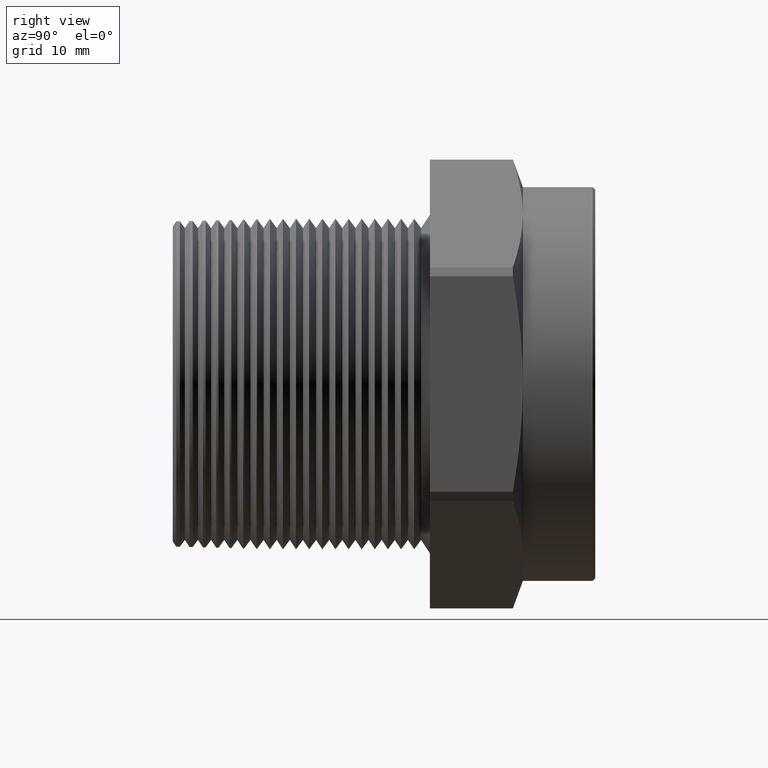
[diagram: clean part render]
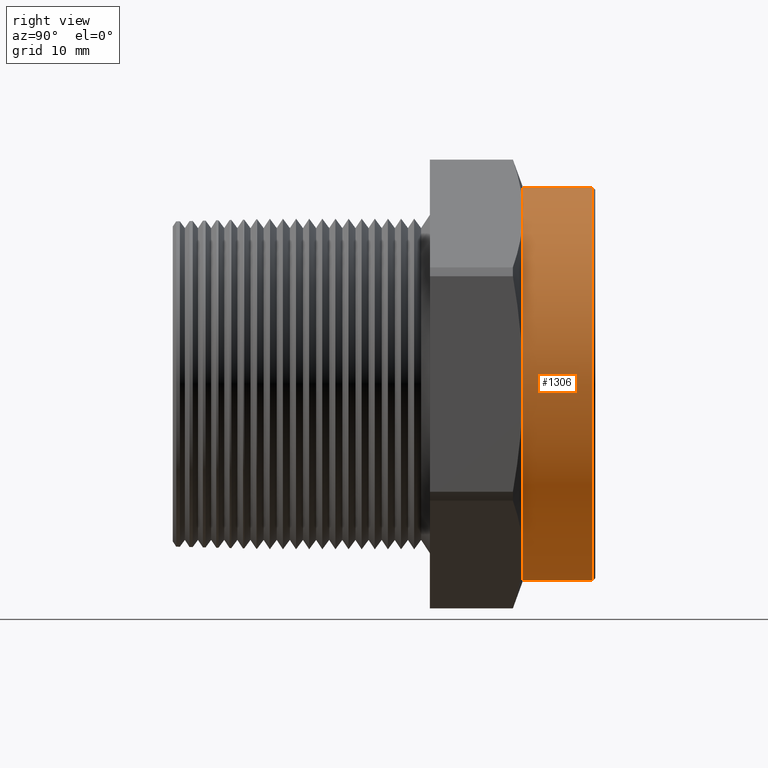
[diagram: same view with one face highlighted and labeled with its STEP entity id]
A machine part, right view. The second image highlights one B-rep face of the part: STEP entity #1306.
In plain terms, the highlighted cylindrical surface (partial cylindrical patch) has radius 19.05 mm, axis along (-0, -1, -0).
Its self-contained STEP definition (entity closure, byte-faithful):
#7 = EDGE_CURVE ( 'NONE', #9, #10, #1420, .T. ) ;
#9 = VERTEX_POINT ( 'NONE', #1480 ) ;
#10 = VERTEX_POINT ( 'NONE', #1479 ) ;
#477 = DIRECTION ( 'NONE',  ( -0.0000000000000000000, -1.000000000000000000, -0.0000000000000000000 ) ) ;
#1246 = VERTEX_POINT ( 'NONE', #3675 ) ;
#1248 = EDGE_CURVE ( 'NONE', #1249, #1246, #3674, .T. ) ;
#1249 = VERTEX_POINT ( 'NONE', #3669 ) ;
#1306 = ADVANCED_FACE ( 'NONE', ( #3805 ), #3804, .T. ) ;
#1307 = EDGE_LOOP ( 'NONE', ( #1308, #1309, #1311, #1368, #1371, #1374, #1377 ) ) ;
#1308 = ORIENTED_EDGE ( 'NONE', *, *, #1248, .T. ) ;
#1309 = ORIENTED_EDGE ( 'NONE', *, *, #1310, .T. ) ;
#1310 = EDGE_CURVE ( 'NONE', #1246, #10, #3799, .T. ) ;
#1311 = ORIENTED_EDGE ( 'NONE', *, *, #7, .F. ) ;
#1368 = ORIENTED_EDGE ( 'NONE', *, *, #1369, .F. ) ;
#1369 = EDGE_CURVE ( 'NONE', #1370, #9, #3878, .T. ) ;
#1370 = VERTEX_POINT ( 'NONE', #3873 ) ;
#1371 = ORIENTED_EDGE ( 'NONE', *, *, #1372, .F. ) ;
#1372 = EDGE_CURVE ( 'NONE', #1373, #1370, #3872, .T. ) ;
#1373 = VERTEX_POINT ( 'NONE', #3934 ) ;
#1374 = ORIENTED_EDGE ( 'NONE', *, *, #1375, .F. ) ;
#1375 = EDGE_CURVE ( 'NONE', #1376, #1373, #3929, .T. ) ;
#1376 = VERTEX_POINT ( 'NONE', #3924 ) ;
#1377 = ORIENTED_EDGE ( 'NONE', *, *, #1378, .F. ) ;
#1378 = EDGE_CURVE ( 'NONE', #1249, #1376, #3923, .T. ) ;
#1418 = CARTESIAN_POINT ( 'NONE',  ( 0.0000000000000000000, 1.334199999999999800, 0.0000000000000000000 ) ) ;
#1419 = AXIS2_PLACEMENT_3D ( 'NONE', #1418, #477, #1481 ) ;
#1420 = CIRCLE ( 'NONE', #1419, 0.7500000000000001100 ) ;
#1479 = CARTESIAN_POINT ( 'NONE',  ( 9.184850993605150900E-017, 1.334199999999999800, 0.7500000000000001100 ) ) ;
#1480 = CARTESIAN_POINT ( 'NONE',  ( 0.3750000000000000600, 1.334199999999999800, 0.6495190528383291100 ) ) ;
#1481 = DIRECTION ( 'NONE',  ( 0.0000000000000000000, 0.0000000000000000000, -1.000000000000000000 ) ) ;
#3669 = CARTESIAN_POINT ( 'NONE',  ( 0.0000000000000000000, 1.599999999999999900, -0.7500000000000001100 ) ) ;
#3670 = DIRECTION ( 'NONE',  ( 0.0000000000000000000, 0.0000000000000000000, 1.000000000000000000 ) ) ;
#3671 = DIRECTION ( 'NONE',  ( -0.0000000000000000000, -1.000000000000000000, -0.0000000000000000000 ) ) ;
#3672 = CARTESIAN_POINT ( 'NONE',  ( 0.0000000000000000000, 1.599999999999999900, 0.0000000000000000000 ) ) ;
#3673 = AXIS2_PLACEMENT_3D ( 'NONE', #3672, #3671, #3670 ) ;
#3674 = CIRCLE ( 'NONE', #3673, 0.7500000000000001100 ) ;
#3675 = CARTESIAN_POINT ( 'NONE',  ( 9.184850993605150900E-017, 1.599999999999999900, 0.7500000000000001100 ) ) ;
#3796 = DIRECTION ( 'NONE',  ( -0.0000000000000000000, -1.000000000000000000, -0.0000000000000000000 ) ) ;
#3797 = VECTOR ( 'NONE', #3796, 39.37007874015748100 ) ;
#3798 = CARTESIAN_POINT ( 'NONE',  ( 9.184850993605150900E-017, 0.0000000000000000000, 0.7500000000000001100 ) ) ;
#3799 = LINE ( 'NONE', #3798, #3797 ) ;
#3800 = DIRECTION ( 'NONE',  ( 0.0000000000000000000, 0.0000000000000000000, -1.000000000000000000 ) ) ;
#3801 = DIRECTION ( 'NONE',  ( -0.0000000000000000000, -1.000000000000000000, -0.0000000000000000000 ) ) ;
#3802 = CARTESIAN_POINT ( 'NONE',  ( 0.0000000000000000000, 0.0000000000000000000, 0.0000000000000000000 ) ) ;
#3803 = AXIS2_PLACEMENT_3D ( 'NONE', #3802, #3801, #3800 ) ;
#3804 = CYLINDRICAL_SURFACE ( 'NONE', #3803, 0.7500000000000001100 ) ;
#3805 = FACE_OUTER_BOUND ( 'NONE', #1307, .T. ) ;
#3872 = CIRCLE ( 'NONE', #3933, 0.7500000000000001100 ) ;
#3873 = CARTESIAN_POINT ( 'NONE',  ( 0.7499999999999998900, 1.334199999999999800, 0.0000000000000000000 ) ) ;
#3874 = DIRECTION ( 'NONE',  ( 0.0000000000000000000, 0.0000000000000000000, -1.000000000000000000 ) ) ;
#3875 = DIRECTION ( 'NONE',  ( -0.0000000000000000000, -1.000000000000000000, -0.0000000000000000000 ) ) ;
#3876 = CARTESIAN_POINT ( 'NONE',  ( 0.0000000000000000000, 1.334199999999999800, 0.0000000000000000000 ) ) ;
#3877 = AXIS2_PLACEMENT_3D ( 'NONE', #3876, #3875, #3874 ) ;
#3878 = CIRCLE ( 'NONE', #3877, 0.7500000000000001100 ) ;
#3920 = DIRECTION ( 'NONE',  ( -0.0000000000000000000, -1.000000000000000000, -0.0000000000000000000 ) ) ;
#3921 = VECTOR ( 'NONE', #3920, 39.37007874015748100 ) ;
#3922 = CARTESIAN_POINT ( 'NONE',  ( 0.0000000000000000000, 0.0000000000000000000, -0.7500000000000001100 ) ) ;
#3923 = LINE ( 'NONE', #3922, #3921 ) ;
#3924 = CARTESIAN_POINT ( 'NONE',  ( 0.0000000000000000000, 1.334199999999999800, -0.7500000000000001100 ) ) ;
#3925 = DIRECTION ( 'NONE',  ( 0.0000000000000000000, 0.0000000000000000000, -1.000000000000000000 ) ) ;
#3926 = DIRECTION ( 'NONE',  ( -0.0000000000000000000, -1.000000000000000000, -0.0000000000000000000 ) ) ;
#3927 = CARTESIAN_POINT ( 'NONE',  ( 0.0000000000000000000, 1.334199999999999800, 0.0000000000000000000 ) ) ;
#3928 = AXIS2_PLACEMENT_3D ( 'NONE', #3927, #3926, #3925 ) ;
#3929 = CIRCLE ( 'NONE', #3928, 0.7500000000000001100 ) ;
#3930 = DIRECTION ( 'NONE',  ( 0.0000000000000000000, 0.0000000000000000000, -1.000000000000000000 ) ) ;
#3931 = DIRECTION ( 'NONE',  ( -0.0000000000000000000, -1.000000000000000000, -0.0000000000000000000 ) ) ;
#3932 = CARTESIAN_POINT ( 'NONE',  ( 0.0000000000000000000, 1.334199999999999800, 0.0000000000000000000 ) ) ;
#3933 = AXIS2_PLACEMENT_3D ( 'NONE', #3932, #3931, #3930 ) ;
#3934 = CARTESIAN_POINT ( 'NONE',  ( 0.3750000000000001700, 1.334199999999999800, -0.6495190528383292200 ) ) ;